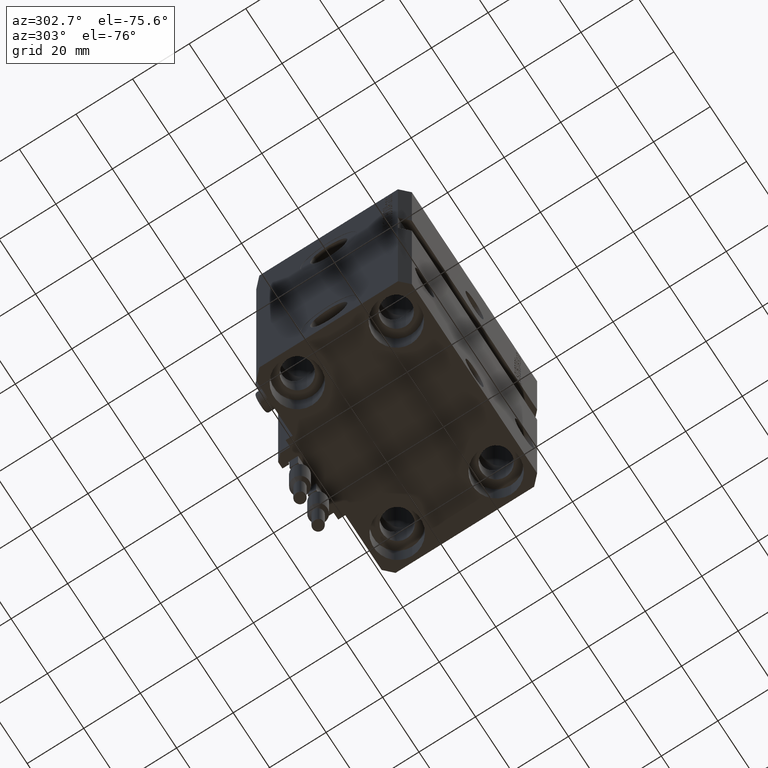
[diagram: clean part render]
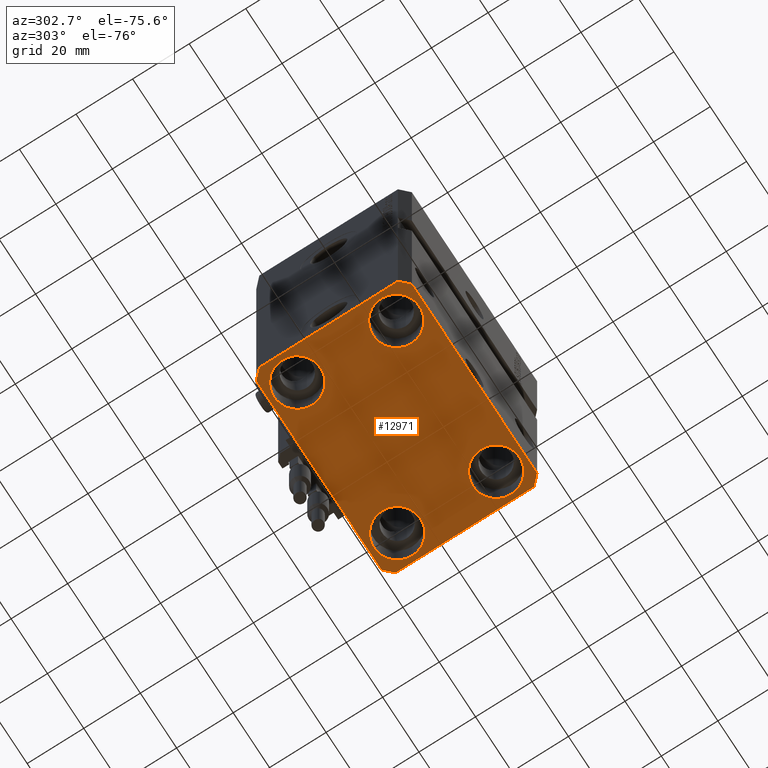
[diagram: same view with one face highlighted and labeled with its STEP entity id]
A machine part, auxiliary view. The second image highlights one B-rep face of the part: STEP entity #12971.
In plain terms, the highlighted planar face has unit normal (0, 0, 1).
Its self-contained STEP definition (entity closure, byte-faithful):
#665 = EDGE_LOOP ( 'NONE', ( #10521, #7163 ) ) ;
#758 = DIRECTION ( 'NONE',  ( 1.000000000000000000, 0.000000000000000000, 0.000000000000000000 ) ) ;
#915 = CIRCLE ( 'NONE', #24503, 8.249999999999992895 ) ;
#1001 = CARTESIAN_POINT ( 'NONE',  ( 19.25000000000000000, 17.50000000000001066, -110.0000000000000000 ) ) ;
#1074 = ORIENTED_EDGE ( 'NONE', *, *, #8499, .T. ) ;
#1347 = DIRECTION ( 'NONE',  ( 1.000000000000000000, 0.000000000000000000, 0.000000000000000000 ) ) ;
#1948 = ORIENTED_EDGE ( 'NONE', *, *, #18084, .F. ) ;
#2127 = ORIENTED_EDGE ( 'NONE', *, *, #47425, .T. ) ;
#2320 = ORIENTED_EDGE ( 'NONE', *, *, #41459, .T. ) ;
#2638 = DIRECTION ( 'NONE',  ( 1.000000000000000000, 0.000000000000000000, 0.000000000000000000 ) ) ;
#3018 = EDGE_CURVE ( 'NONE', #41012, #42697, #29268, .T. ) ;
#3830 = CARTESIAN_POINT ( 'NONE',  ( 34.50000000000056843, 27.50000000000000000, -110.0000000000000000 ) ) ;
#3991 = EDGE_LOOP ( 'NONE', ( #43761, #35193, #39003, #45595, #28000, #1948, #31539, #10914 ) ) ;
#4452 = VERTEX_POINT ( 'NONE', #25895 ) ;
#4720 = DIRECTION ( 'NONE',  ( 1.000000000000000000, 0.000000000000000000, 0.000000000000000000 ) ) ;
#4777 = DIRECTION ( 'NONE',  ( 0.000000000000000000, 0.000000000000000000, 1.000000000000000000 ) ) ;
#4828 = VECTOR ( 'NONE', #43810, 1000.000000000000114 ) ;
#5072 = CIRCLE ( 'NONE', #38374, 8.250000000000000000 ) ;
#5839 = VECTOR ( 'NONE', #29636, 1000.000000000000000 ) ;
#5931 = EDGE_CURVE ( 'NONE', #46526, #11104, #5942, .T. ) ;
#5942 = LINE ( 'NONE', #25284, #38781 ) ;
#6113 = DIRECTION ( 'NONE',  ( -0.7071067811865471286, -0.7071067811865479058, 0.000000000000000000 ) ) ;
#7163 = ORIENTED_EDGE ( 'NONE', *, *, #18647, .T. ) ;
#7653 = CARTESIAN_POINT ( 'NONE',  ( -37.49999999999999289, -24.50000000000000000, -110.0000000000000000 ) ) ;
#7879 = AXIS2_PLACEMENT_3D ( 'NONE', #45092, #10465, #40778 ) ;
#8077 = FACE_OUTER_BOUND ( 'NONE', #3991, .T. ) ;
#8240 = CARTESIAN_POINT ( 'NONE',  ( -37.49999999999999289, 24.50000000000000000, -110.0000000000000000 ) ) ;
#8499 = EDGE_CURVE ( 'NONE', #4452, #43361, #28364, .T. ) ;
#8780 = DIRECTION ( 'NONE',  ( -0.000000000000000000, -0.000000000000000000, 1.000000000000000000 ) ) ;
#9363 = EDGE_CURVE ( 'NONE', #11104, #33246, #24718, .T. ) ;
#9689 = VERTEX_POINT ( 'NONE', #1001 ) ;
#10465 = DIRECTION ( 'NONE',  ( -0.000000000000000000, -0.000000000000000000, 1.000000000000000000 ) ) ;
#10521 = ORIENTED_EDGE ( 'NONE', *, *, #41586, .T. ) ;
#10914 = ORIENTED_EDGE ( 'NONE', *, *, #3018, .F. ) ;
#11104 = VERTEX_POINT ( 'NONE', #19771 ) ;
#11220 = EDGE_LOOP ( 'NONE', ( #2127, #14777 ) ) ;
#11224 = DIRECTION ( 'NONE',  ( -1.000000000000000000, 0.000000000000000000, 0.000000000000000000 ) ) ;
#11394 = ORIENTED_EDGE ( 'NONE', *, *, #12913, .T. ) ;
#11593 = EDGE_CURVE ( 'NONE', #33246, #27492, #37178, .T. ) ;
#11644 = VERTEX_POINT ( 'NONE', #45584 ) ;
#12417 = CARTESIAN_POINT ( 'NONE',  ( 0.000000000000000000, 0.000000000000000000, -110.0000000000000000 ) ) ;
#12560 = CARTESIAN_POINT ( 'NONE',  ( -19.25000000000000355, -17.50000000000000000, -110.0000000000000000 ) ) ;
#12602 = CARTESIAN_POINT ( 'NONE',  ( -27.50000000000000355, 17.50000000000000000, -110.0000000000000000 ) ) ;
#12913 = EDGE_CURVE ( 'NONE', #43361, #4452, #27711, .T. ) ;
#12971 = ADVANCED_FACE ( 'NONE', ( #27428, #39138, #42954, #47293, #8077 ), #20285, .F. ) ;
#13011 = CARTESIAN_POINT ( 'NONE',  ( 34.49999999999999289, -27.49999999999999645, -110.0000000000000000 ) ) ;
#13777 = DIRECTION ( 'NONE',  ( 1.076236605503979380E-14, 1.000000000000000000, 0.000000000000000000 ) ) ;
#13831 = VERTEX_POINT ( 'NONE', #48321 ) ;
#14116 = LINE ( 'NONE', #26836, #5839 ) ;
#14370 = AXIS2_PLACEMENT_3D ( 'NONE', #27758, #43279, #758 ) ;
#14477 = CARTESIAN_POINT ( 'NONE',  ( -37.49999999999999289, 24.50000000000000000, -110.0000000000000000 ) ) ;
#14504 = CARTESIAN_POINT ( 'NONE',  ( 19.25000000000000000, -17.50000000000000000, -110.0000000000000000 ) ) ;
#14777 = ORIENTED_EDGE ( 'NONE', *, *, #25885, .T. ) ;
#15530 = AXIS2_PLACEMENT_3D ( 'NONE', #42206, #30235, #34304 ) ;
#15683 = EDGE_CURVE ( 'NONE', #27492, #11644, #36540, .T. ) ;
#18084 = EDGE_CURVE ( 'NONE', #45075, #46526, #14116, .T. ) ;
#18189 = EDGE_CURVE ( 'NONE', #42697, #45075, #24701, .T. ) ;
#18647 = EDGE_CURVE ( 'NONE', #13831, #31570, #5072, .T. ) ;
#19376 = VECTOR ( 'NONE', #11224, 1000.000000000000000 ) ;
#19771 = CARTESIAN_POINT ( 'NONE',  ( 34.49999999999999289, -27.49999999999999645, -110.0000000000000000 ) ) ;
#20285 = PLANE ( 'NONE',  #32609 ) ;
#21131 = DIRECTION ( 'NONE',  ( 1.000000000000000000, 0.000000000000000000, 0.000000000000000000 ) ) ;
#21232 = CARTESIAN_POINT ( 'NONE',  ( 27.49999999999999645, 17.50000000000001066, -110.0000000000000000 ) ) ;
#21480 = CARTESIAN_POINT ( 'NONE',  ( 27.50000000000000355, -17.50000000000000000, -110.0000000000000000 ) ) ;
#22652 = DIRECTION ( 'NONE',  ( -0.000000000000000000, -0.000000000000000000, 1.000000000000000000 ) ) ;
#22658 = AXIS2_PLACEMENT_3D ( 'NONE', #33096, #28772, #21131 ) ;
#23620 = VERTEX_POINT ( 'NONE', #24101 ) ;
#23866 = DIRECTION ( 'NONE',  ( -0.000000000000000000, -0.000000000000000000, 1.000000000000000000 ) ) ;
#24101 = CARTESIAN_POINT ( 'NONE',  ( 35.75000000000000711, -17.50000000000000000, -110.0000000000000000 ) ) ;
#24117 = VECTOR ( 'NONE', #6113, 1000.000000000000000 ) ;
#24365 = DIRECTION ( 'NONE',  ( 1.000000000000000000, 0.000000000000000000, 0.000000000000000000 ) ) ;
#24503 = AXIS2_PLACEMENT_3D ( 'NONE', #26474, #22652, #34599 ) ;
#24701 = LINE ( 'NONE', #8240, #32641 ) ;
#24718 = LINE ( 'NONE', #13011, #4828 ) ;
#24945 = CARTESIAN_POINT ( 'NONE',  ( -34.49999999999999289, 27.50000000000000000, -110.0000000000000000 ) ) ;
#25067 = CIRCLE ( 'NONE', #25860, 8.250000000000000000 ) ;
#25284 = CARTESIAN_POINT ( 'NONE',  ( -34.49999999999998579, -27.49999999999999645, -110.0000000000000000 ) ) ;
#25312 = DIRECTION ( 'NONE',  ( -0.000000000000000000, -0.000000000000000000, 1.000000000000000000 ) ) ;
#25860 = AXIS2_PLACEMENT_3D ( 'NONE', #21480, #23866, #24365 ) ;
#25885 = EDGE_CURVE ( 'NONE', #42211, #9689, #915, .T. ) ;
#25895 = CARTESIAN_POINT ( 'NONE',  ( -35.75000000000000711, -17.50000000000000000, -110.0000000000000000 ) ) ;
#26474 = CARTESIAN_POINT ( 'NONE',  ( 27.49999999999999645, 17.50000000000001066, -110.0000000000000000 ) ) ;
#26836 = CARTESIAN_POINT ( 'NONE',  ( -37.49999999999999289, -24.50000000000000000, -110.0000000000000000 ) ) ;
#27428 = FACE_BOUND ( 'NONE', #34177, .T. ) ;
#27483 = AXIS2_PLACEMENT_3D ( 'NONE', #21232, #25312, #2638 ) ;
#27492 = VERTEX_POINT ( 'NONE', #46126 ) ;
#27586 = DIRECTION ( 'NONE',  ( 0.000000000000000000, -1.000000000000000000, 0.000000000000000000 ) ) ;
#27627 = CARTESIAN_POINT ( 'NONE',  ( -34.49999999999999289, 27.50000000000000000, -110.0000000000000000 ) ) ;
#27711 = CIRCLE ( 'NONE', #15530, 8.250000000000000000 ) ;
#27758 = CARTESIAN_POINT ( 'NONE',  ( -27.50000000000000355, 17.50000000000000000, -110.0000000000000000 ) ) ;
#28000 = ORIENTED_EDGE ( 'NONE', *, *, #5931, .F. ) ;
#28364 = CIRCLE ( 'NONE', #22658, 8.250000000000000000 ) ;
#28669 = CARTESIAN_POINT ( 'NONE',  ( -35.75000000000000711, 17.50000000000000000, -110.0000000000000000 ) ) ;
#28772 = DIRECTION ( 'NONE',  ( -0.000000000000000000, -0.000000000000000000, 1.000000000000000000 ) ) ;
#29161 = CARTESIAN_POINT ( 'NONE',  ( 37.50000000000051870, 24.49999999999995381, -110.0000000000000000 ) ) ;
#29268 = LINE ( 'NONE', #24945, #24117 ) ;
#29636 = DIRECTION ( 'NONE',  ( 0.7071067811865483499, -0.7071067811865466846, 0.000000000000000000 ) ) ;
#30121 = VECTOR ( 'NONE', #32977, 1000.000000000000114 ) ;
#30235 = DIRECTION ( 'NONE',  ( -0.000000000000000000, -0.000000000000000000, 1.000000000000000000 ) ) ;
#31539 = ORIENTED_EDGE ( 'NONE', *, *, #18189, .F. ) ;
#31570 = VERTEX_POINT ( 'NONE', #28669 ) ;
#32609 = AXIS2_PLACEMENT_3D ( 'NONE', #12417, #4777, #47031 ) ;
#32641 = VECTOR ( 'NONE', #27586, 1000.000000000000000 ) ;
#32977 = DIRECTION ( 'NONE',  ( -0.7071067811865356934, 0.7071067811865594521, 0.000000000000000000 ) ) ;
#33096 = CARTESIAN_POINT ( 'NONE',  ( -27.50000000000000355, -17.50000000000000000, -110.0000000000000000 ) ) ;
#33246 = VERTEX_POINT ( 'NONE', #37065 ) ;
#34177 = EDGE_LOOP ( 'NONE', ( #1074, #11394 ) ) ;
#34186 = ORIENTED_EDGE ( 'NONE', *, *, #44571, .T. ) ;
#34304 = DIRECTION ( 'NONE',  ( 1.000000000000000000, 0.000000000000000000, 0.000000000000000000 ) ) ;
#34599 = DIRECTION ( 'NONE',  ( 1.000000000000000000, 0.000000000000000000, 0.000000000000000000 ) ) ;
#35193 = ORIENTED_EDGE ( 'NONE', *, *, #15683, .F. ) ;
#36313 = CIRCLE ( 'NONE', #14370, 8.250000000000000000 ) ;
#36540 = LINE ( 'NONE', #29161, #30121 ) ;
#37053 = VERTEX_POINT ( 'NONE', #14504 ) ;
#37065 = CARTESIAN_POINT ( 'NONE',  ( 37.49999999999999289, -24.50000000000000000, -110.0000000000000000 ) ) ;
#37178 = LINE ( 'NONE', #40492, #48796 ) ;
#38374 = AXIS2_PLACEMENT_3D ( 'NONE', #12602, #8780, #4720 ) ;
#38781 = VECTOR ( 'NONE', #1347, 1000.000000000000000 ) ;
#39003 = ORIENTED_EDGE ( 'NONE', *, *, #11593, .F. ) ;
#39138 = FACE_BOUND ( 'NONE', #40011, .T. ) ;
#40011 = EDGE_LOOP ( 'NONE', ( #2320, #34186 ) ) ;
#40492 = CARTESIAN_POINT ( 'NONE',  ( 37.49999999999999289, -24.50000000000000000, -110.0000000000000000 ) ) ;
#40778 = DIRECTION ( 'NONE',  ( 1.000000000000000000, 0.000000000000000000, 0.000000000000000000 ) ) ;
#41012 = VERTEX_POINT ( 'NONE', #27627 ) ;
#41459 = EDGE_CURVE ( 'NONE', #37053, #23620, #50159, .T. ) ;
#41586 = EDGE_CURVE ( 'NONE', #31570, #13831, #36313, .T. ) ;
#42206 = CARTESIAN_POINT ( 'NONE',  ( -27.50000000000000355, -17.50000000000000000, -110.0000000000000000 ) ) ;
#42211 = VERTEX_POINT ( 'NONE', #48689 ) ;
#42277 = LINE ( 'NONE', #3830, #19376 ) ;
#42697 = VERTEX_POINT ( 'NONE', #14477 ) ;
#42954 = FACE_BOUND ( 'NONE', #11220, .T. ) ;
#43279 = DIRECTION ( 'NONE',  ( -0.000000000000000000, -0.000000000000000000, 1.000000000000000000 ) ) ;
#43361 = VERTEX_POINT ( 'NONE', #12560 ) ;
#43719 = CIRCLE ( 'NONE', #27483, 8.249999999999992895 ) ;
#43761 = ORIENTED_EDGE ( 'NONE', *, *, #45099, .F. ) ;
#43810 = DIRECTION ( 'NONE',  ( 0.7071067811865474617, 0.7071067811865474617, 0.000000000000000000 ) ) ;
#44571 = EDGE_CURVE ( 'NONE', #23620, #37053, #25067, .T. ) ;
#45075 = VERTEX_POINT ( 'NONE', #7653 ) ;
#45092 = CARTESIAN_POINT ( 'NONE',  ( 27.50000000000000355, -17.50000000000000000, -110.0000000000000000 ) ) ;
#45099 = EDGE_CURVE ( 'NONE', #11644, #41012, #42277, .T. ) ;
#45584 = CARTESIAN_POINT ( 'NONE',  ( 34.50000000000056843, 27.50000000000000000, -110.0000000000000000 ) ) ;
#45595 = ORIENTED_EDGE ( 'NONE', *, *, #9363, .F. ) ;
#46126 = CARTESIAN_POINT ( 'NONE',  ( 37.50000000000051870, 24.49999999999995381, -110.0000000000000000 ) ) ;
#46526 = VERTEX_POINT ( 'NONE', #49817 ) ;
#47031 = DIRECTION ( 'NONE',  ( 1.000000000000000000, 0.000000000000000000, -0.000000000000000000 ) ) ;
#47293 = FACE_BOUND ( 'NONE', #665, .T. ) ;
#47425 = EDGE_CURVE ( 'NONE', #9689, #42211, #43719, .T. ) ;
#48321 = CARTESIAN_POINT ( 'NONE',  ( -19.25000000000000355, 17.50000000000000000, -110.0000000000000000 ) ) ;
#48689 = CARTESIAN_POINT ( 'NONE',  ( 35.74999999999999289, 17.50000000000001066, -110.0000000000000000 ) ) ;
#48796 = VECTOR ( 'NONE', #13777, 1000.000000000000000 ) ;
#49817 = CARTESIAN_POINT ( 'NONE',  ( -34.49999999999998579, -27.49999999999999645, -110.0000000000000000 ) ) ;
#50159 = CIRCLE ( 'NONE', #7879, 8.250000000000000000 ) ;